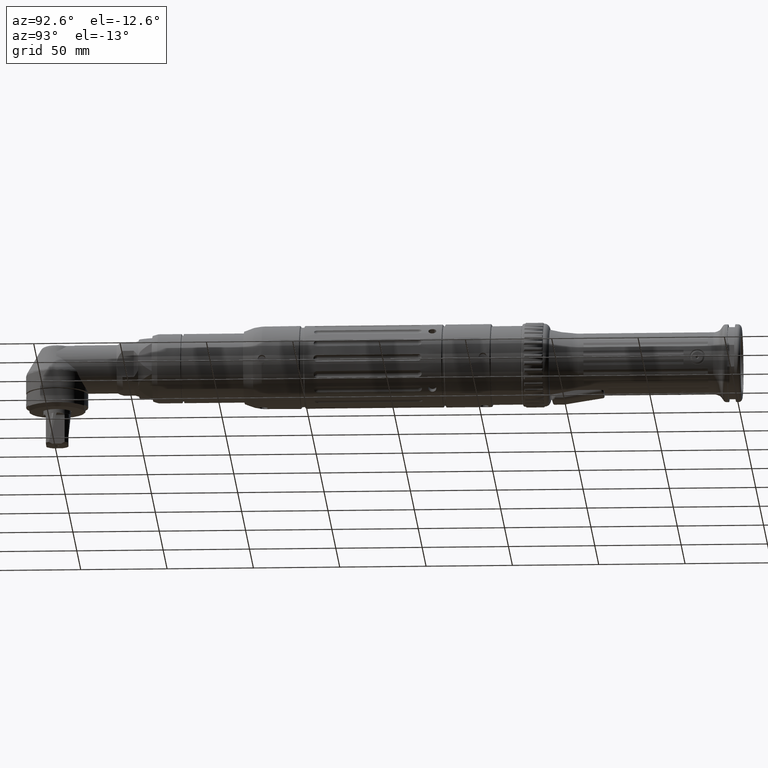
[diagram: clean part render]
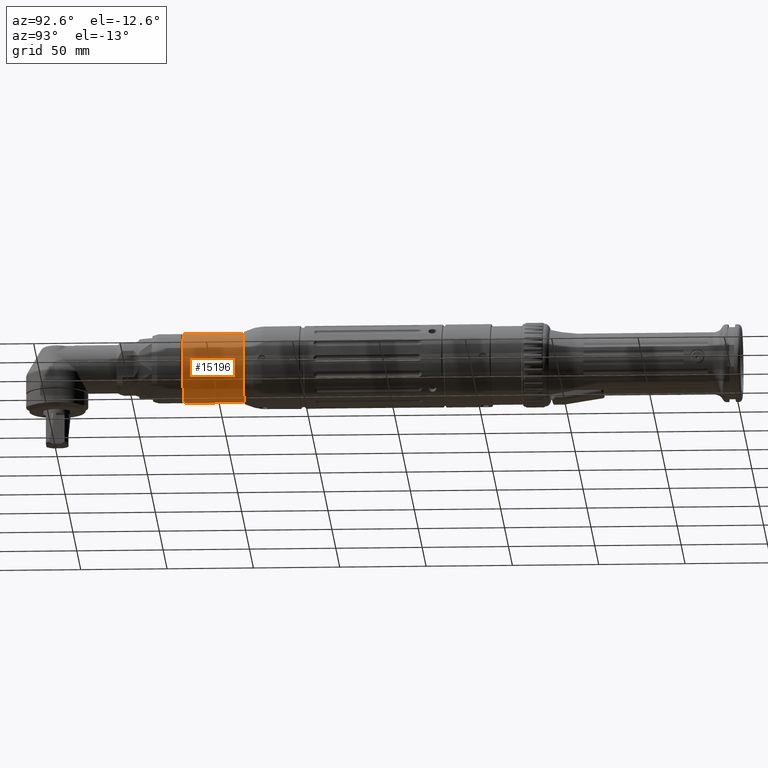
[diagram: same view with one face highlighted and labeled with its STEP entity id]
A machine part, auxiliary view. The second image highlights one B-rep face of the part: STEP entity #15196.
In plain terms, the highlighted cylindrical surface (bore or boss wall) has radius 20 mm, axis along (0, 1, 0).
Its self-contained STEP definition (entity closure, byte-faithful):
#1036=FACE_BOUND('',#4072,.T.);
#3099=FACE_OUTER_BOUND('',#4071,.T.);
#4071=EDGE_LOOP('',(#9975));
#4072=EDGE_LOOP('',(#9976));
#5278=CIRCLE('',#16221,20.);
#5282=CIRCLE('',#16230,20.);
#6297=VERTEX_POINT('',#23712);
#6301=VERTEX_POINT('',#23725);
#7755=EDGE_CURVE('',#6297,#6297,#5278,.T.);
#7759=EDGE_CURVE('',#6301,#6301,#5282,.T.);
#9975=ORIENTED_EDGE('',*,*,#7759,.T.);
#9976=ORIENTED_EDGE('',*,*,#7755,.T.);
#13930=CYLINDRICAL_SURFACE('',#16229,20.);
#15196=ADVANCED_FACE('',(#3099,#1036),#13930,.T.);
#16221=AXIS2_PLACEMENT_3D('',#23713,#18404,#18405);
#16229=AXIS2_PLACEMENT_3D('',#23724,#18420,#18421);
#16230=AXIS2_PLACEMENT_3D('',#23726,#18422,#18423);
#18404=DIRECTION('center_axis',(-5.72118872610925E-18,-1.,-2.2204460492503E-16));
#18405=DIRECTION('ref_axis',(5.55111512312578E-17,2.2204460492503E-16,-1.));
#18420=DIRECTION('center_axis',(5.72118872610925E-18,1.,2.2204460492503E-16));
#18421=DIRECTION('ref_axis',(5.55111512312578E-17,2.2204460492503E-16,-1.));
#18422=DIRECTION('center_axis',(5.72118872610925E-18,1.,2.2204460492503E-16));
#18423=DIRECTION('ref_axis',(-1.,5.72118872610926E-18,-5.55111512312578E-17));
#23712=CARTESIAN_POINT('',(-1.78209416681401E-14,108.849,-20.));
#23713=CARTESIAN_POINT('Origin',(-3.2924215619237E-15,108.849,-1.79398162991617E-14));
#23724=CARTESIAN_POINT('Origin',(-3.35421040016568E-15,98.049,-2.0337898032352E-14));
#23725=CARTESIAN_POINT('',(-2.3841564993302E-15,73.549,-20.));
#23726=CARTESIAN_POINT('Origin',(-3.49437952395535E-15,73.549,-2.57779908530153E-14));